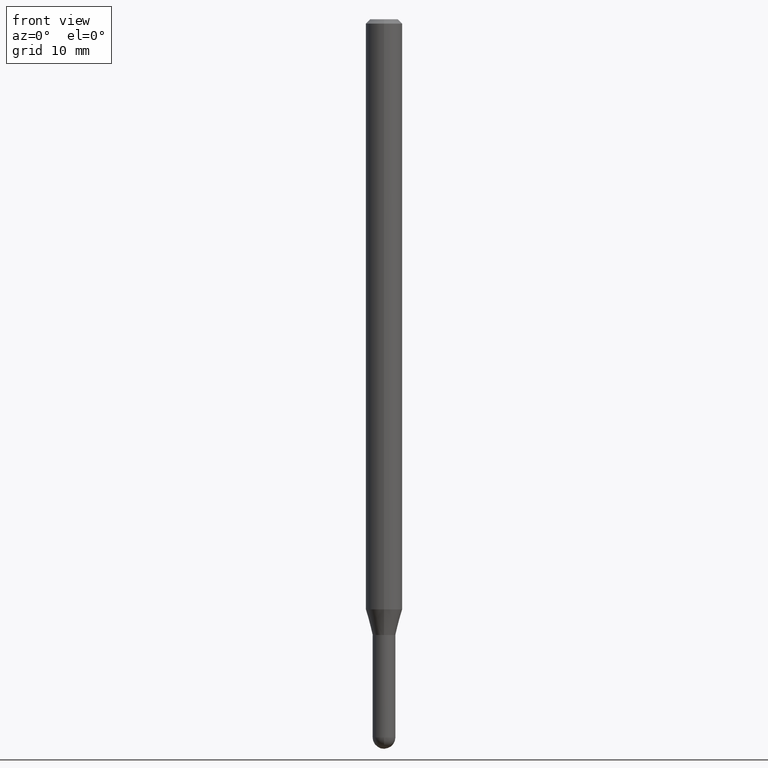
[diagram: clean part render]
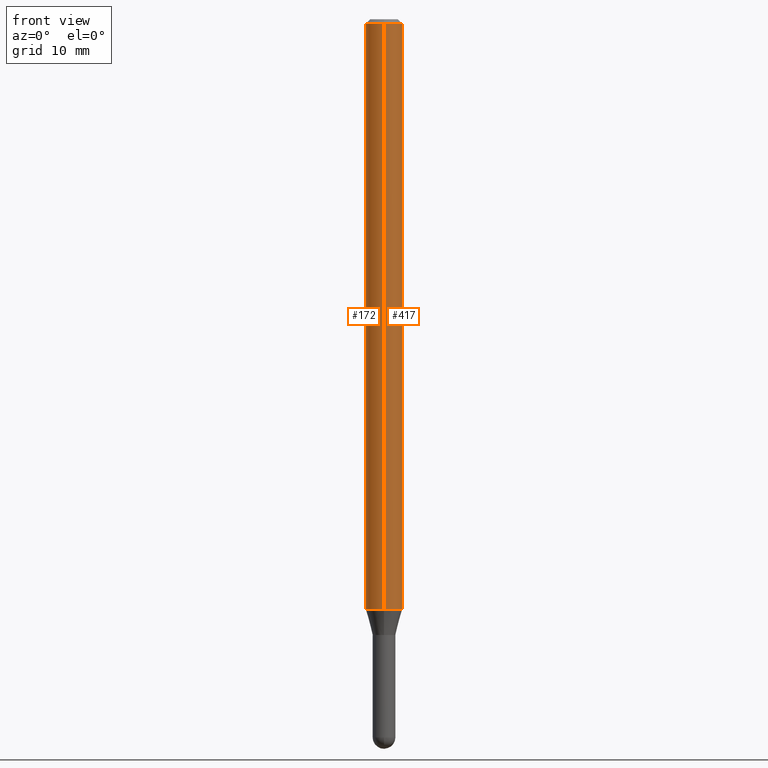
[diagram: same view with one multi-face feature highlighted, each face labeled with its STEP entity id]
A machine part, front view. The highlighted faces form ONE feature: a constant-radius fillet chain: 2 tangent blend faces with common blend radius 1.5875 mm. The faces share edges in the B-rep.
Their STEP definitions:
[1] entity #417 (Cylinder):
#2 = CARTESIAN_POINT ( 'NONE',  ( 4.440892098501117228E-16, 0.06249999999999289457, -2.022296806022132909 ) ) ;
#40 = DIRECTION ( 'NONE',  ( -2.445500728968380210E-29, 3.491435623600608667E-15, 1.000000000000000000 ) ) ;
#44 = AXIS2_PLACEMENT_3D ( 'NONE', #147, #381, #71 ) ;
#56 = EDGE_CURVE ( 'NONE', #446, #450, #175, .T. ) ;
#64 = EDGE_CURVE ( 'NONE', #446, #396, #312, .T. ) ;
#68 = DIRECTION ( 'NONE',  ( -2.445500728968379930E-29, 3.491435623600608667E-15, 1.000000000000000000 ) ) ;
#71 = DIRECTION ( 'NONE',  ( -6.982962677686265922E-15, -1.000000000000000000, 3.483106191921935554E-15 ) ) ;
#100 = ORIENTED_EDGE ( 'NONE', *, *, #366, .T. ) ;
#106 = LINE ( 'NONE', #431, #113 ) ;
#113 = VECTOR ( 'NONE', #68, 39.37007874015748143 ) ;
#147 = CARTESIAN_POINT ( 'NONE',  ( 3.668251093452573101E-31, -5.237153435400915910E-17, -0.01500000000000000812 ) ) ;
#151 = VECTOR ( 'NONE', #467, 39.37007874015748143 ) ;
#154 = AXIS2_PLACEMENT_3D ( 'NONE', #505, #458, #313 ) ;
#157 = CARTESIAN_POINT ( 'NONE',  ( -4.364351673553916201E-16, -0.06250000000000000000, 2.182147264750380417E-16 ) ) ;
#175 = CIRCLE ( 'NONE', #476, 0.06250000000000000000 ) ;
#180 = ORIENTED_EDGE ( 'NONE', *, *, #64, .F. ) ;
#182 = CIRCLE ( 'NONE', #44, 0.06250000000000000000 ) ;
#196 = CARTESIAN_POINT ( 'NONE',  ( -4.364351673553912750E-16, -0.06250000000000005551, -0.01499999999999979128 ) ) ;
#260 = CYLINDRICAL_SURFACE ( 'NONE', #154, 0.06250000000000000000 ) ;
#312 = LINE ( 'NONE', #157, #151 ) ;
#313 = DIRECTION ( 'NONE',  ( -6.982962677686265922E-15, -1.000000000000000000, 3.491435623600608667E-15 ) ) ;
#314 = ORIENTED_EDGE ( 'NONE', *, *, #56, .T. ) ;
#316 = CARTESIAN_POINT ( 'NONE',  ( -4.364351673553424642E-16, -0.06250000000000709155, -2.022296806022132465 ) ) ;
#350 = EDGE_CURVE ( 'NONE', #396, #490, #182, .T. ) ;
#352 = CARTESIAN_POINT ( 'NONE',  ( 4.945528313317552606E-29, -7.060719110039404630E-15, -2.022296806022132909 ) ) ;
#366 = EDGE_CURVE ( 'NONE', #450, #490, #106, .T. ) ;
#381 = DIRECTION ( 'NONE',  ( -2.445500728968380210E-29, 3.491435623600608667E-15, 1.000000000000000000 ) ) ;
#393 = DIRECTION ( 'NONE',  ( -6.982962677686265922E-15, -1.000000000000000000, 4.370956789862821150E-15 ) ) ;
#396 = VERTEX_POINT ( 'NONE', #196 ) ;
#398 = FACE_OUTER_BOUND ( 'NONE', #506, .T. ) ;
#417 = ADVANCED_FACE ( 'NONE', ( #398 ), #260, .T. ) ;
#418 = CARTESIAN_POINT ( 'NONE',  ( 4.440892098501123144E-16, 0.06249999999999995143, -0.01500000000000022669 ) ) ;
#423 = ORIENTED_EDGE ( 'NONE', *, *, #350, .F. ) ;
#431 = CARTESIAN_POINT ( 'NONE',  ( 4.440892098500625669E-16, 0.06250000000000000000, -2.182147264750380417E-16 ) ) ;
#446 = VERTEX_POINT ( 'NONE', #316 ) ;
#450 = VERTEX_POINT ( 'NONE', #2 ) ;
#458 = DIRECTION ( 'NONE',  ( -2.445500728968380210E-29, 3.491435623600608667E-15, 1.000000000000000000 ) ) ;
#467 = DIRECTION ( 'NONE',  ( -2.445500728968379930E-29, 3.491435623600608667E-15, 1.000000000000000000 ) ) ;
#476 = AXIS2_PLACEMENT_3D ( 'NONE', #352, #40, #393 ) ;
#490 = VERTEX_POINT ( 'NONE', #418 ) ;
#505 = CARTESIAN_POINT ( 'NONE',  ( 0.000000000000000000, 0.000000000000000000, 0.000000000000000000 ) ) ;
#506 = EDGE_LOOP ( 'NONE', ( #314, #100, #423, #180 ) ) ;
[2] entity #172 (Cylinder):
#2 = CARTESIAN_POINT ( 'NONE',  ( 4.440892098501117228E-16, 0.06249999999999289457, -2.022296806022132909 ) ) ;
#20 = CIRCLE ( 'NONE', #294, 0.06250000000000000000 ) ;
#45 = CARTESIAN_POINT ( 'NONE',  ( 3.668251093452573101E-31, -5.237153435400915910E-17, -0.01500000000000000812 ) ) ;
#64 = EDGE_CURVE ( 'NONE', #446, #396, #312, .T. ) ;
#68 = DIRECTION ( 'NONE',  ( -2.445500728968379930E-29, 3.491435623600608667E-15, 1.000000000000000000 ) ) ;
#90 = DIRECTION ( 'NONE',  ( -6.982962677686265922E-15, -1.000000000000000000, 3.491435623600608667E-15 ) ) ;
#106 = LINE ( 'NONE', #431, #113 ) ;
#113 = VECTOR ( 'NONE', #68, 39.37007874015748143 ) ;
#121 = DIRECTION ( 'NONE',  ( -2.445500728968380210E-29, 3.491435623600608667E-15, 1.000000000000000000 ) ) ;
#151 = VECTOR ( 'NONE', #467, 39.37007874015748143 ) ;
#155 = ORIENTED_EDGE ( 'NONE', *, *, #366, .F. ) ;
#157 = CARTESIAN_POINT ( 'NONE',  ( -4.364351673553916201E-16, -0.06250000000000000000, 2.182147264750380417E-16 ) ) ;
#172 = ADVANCED_FACE ( 'NONE', ( #218 ), #444, .T. ) ;
#173 = DIRECTION ( 'NONE',  ( -2.445500728968380210E-29, 3.491435623600608667E-15, 1.000000000000000000 ) ) ;
#181 = EDGE_CURVE ( 'NONE', #490, #396, #20, .T. ) ;
#196 = CARTESIAN_POINT ( 'NONE',  ( -4.364351673553912750E-16, -0.06250000000000005551, -0.01499999999999979128 ) ) ;
#198 = EDGE_LOOP ( 'NONE', ( #155, #489, #400, #383 ) ) ;
#206 = DIRECTION ( 'NONE',  ( -6.982962677686265922E-15, -1.000000000000000000, 4.370956789862821150E-15 ) ) ;
#214 = CARTESIAN_POINT ( 'NONE',  ( 0.000000000000000000, 0.000000000000000000, 0.000000000000000000 ) ) ;
#218 = FACE_OUTER_BOUND ( 'NONE', #198, .T. ) ;
#241 = CARTESIAN_POINT ( 'NONE',  ( 4.945528313317552606E-29, -7.060719110039404630E-15, -2.022296806022132909 ) ) ;
#294 = AXIS2_PLACEMENT_3D ( 'NONE', #45, #121, #460 ) ;
#303 = AXIS2_PLACEMENT_3D ( 'NONE', #214, #173, #90 ) ;
#312 = LINE ( 'NONE', #157, #151 ) ;
#316 = CARTESIAN_POINT ( 'NONE',  ( -4.364351673553424642E-16, -0.06250000000000709155, -2.022296806022132465 ) ) ;
#353 = CIRCLE ( 'NONE', #466, 0.06250000000000000000 ) ;
#366 = EDGE_CURVE ( 'NONE', #450, #490, #106, .T. ) ;
#383 = ORIENTED_EDGE ( 'NONE', *, *, #181, .F. ) ;
#384 = DIRECTION ( 'NONE',  ( -2.445500728968380210E-29, 3.491435623600608667E-15, 1.000000000000000000 ) ) ;
#396 = VERTEX_POINT ( 'NONE', #196 ) ;
#400 = ORIENTED_EDGE ( 'NONE', *, *, #64, .T. ) ;
#418 = CARTESIAN_POINT ( 'NONE',  ( 4.440892098501123144E-16, 0.06249999999999995143, -0.01500000000000022669 ) ) ;
#431 = CARTESIAN_POINT ( 'NONE',  ( 4.440892098500625669E-16, 0.06250000000000000000, -2.182147264750380417E-16 ) ) ;
#444 = CYLINDRICAL_SURFACE ( 'NONE', #303, 0.06250000000000000000 ) ;
#446 = VERTEX_POINT ( 'NONE', #316 ) ;
#450 = VERTEX_POINT ( 'NONE', #2 ) ;
#460 = DIRECTION ( 'NONE',  ( -6.982962677686265922E-15, -1.000000000000000000, 3.483106191921935554E-15 ) ) ;
#461 = EDGE_CURVE ( 'NONE', #450, #446, #353, .T. ) ;
#466 = AXIS2_PLACEMENT_3D ( 'NONE', #241, #384, #206 ) ;
#467 = DIRECTION ( 'NONE',  ( -2.445500728968379930E-29, 3.491435623600608667E-15, 1.000000000000000000 ) ) ;
#489 = ORIENTED_EDGE ( 'NONE', *, *, #461, .T. ) ;
#490 = VERTEX_POINT ( 'NONE', #418 ) ;